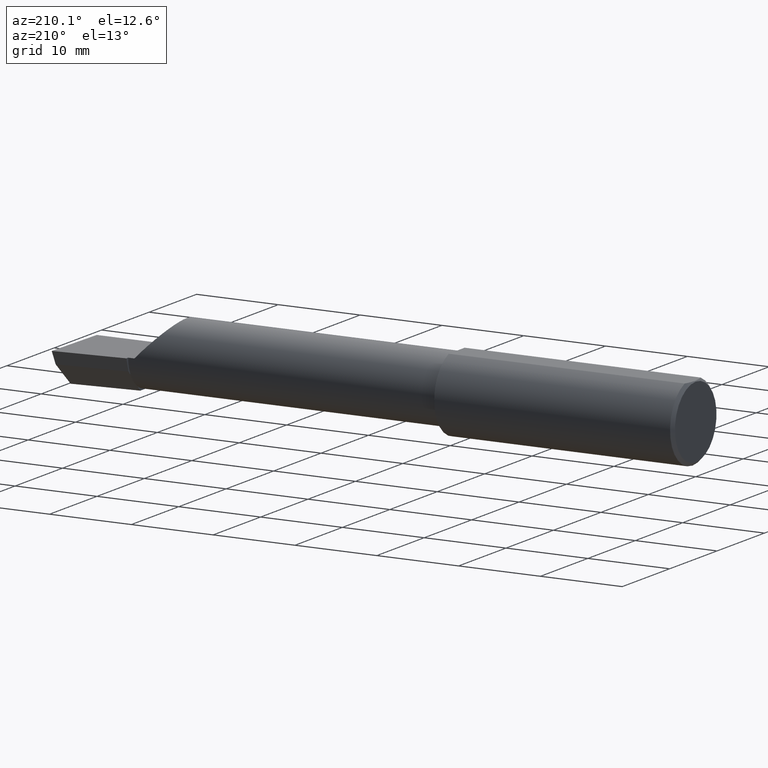
[diagram: clean part render]
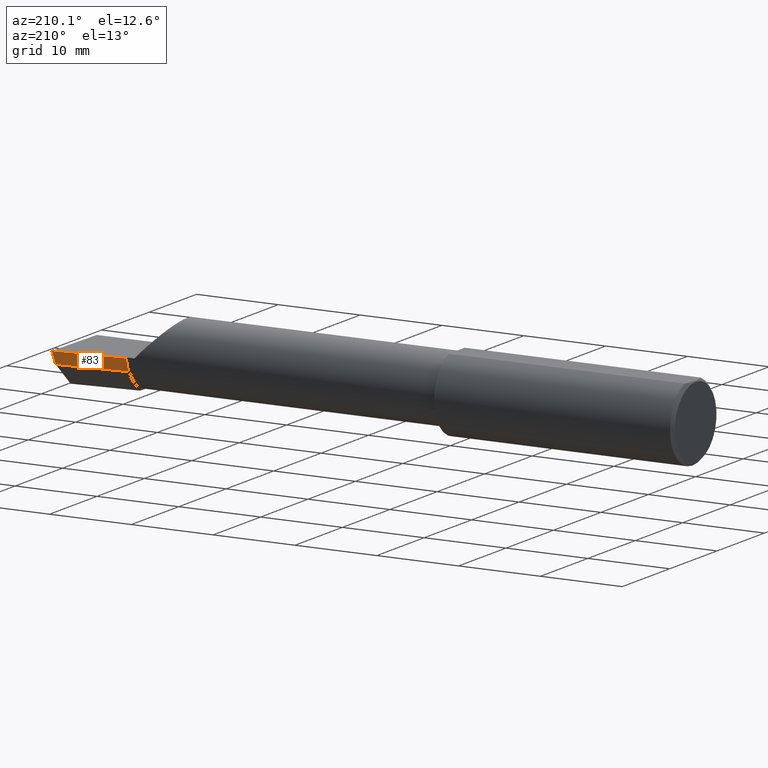
[diagram: same view with one face highlighted and labeled with its STEP entity id]
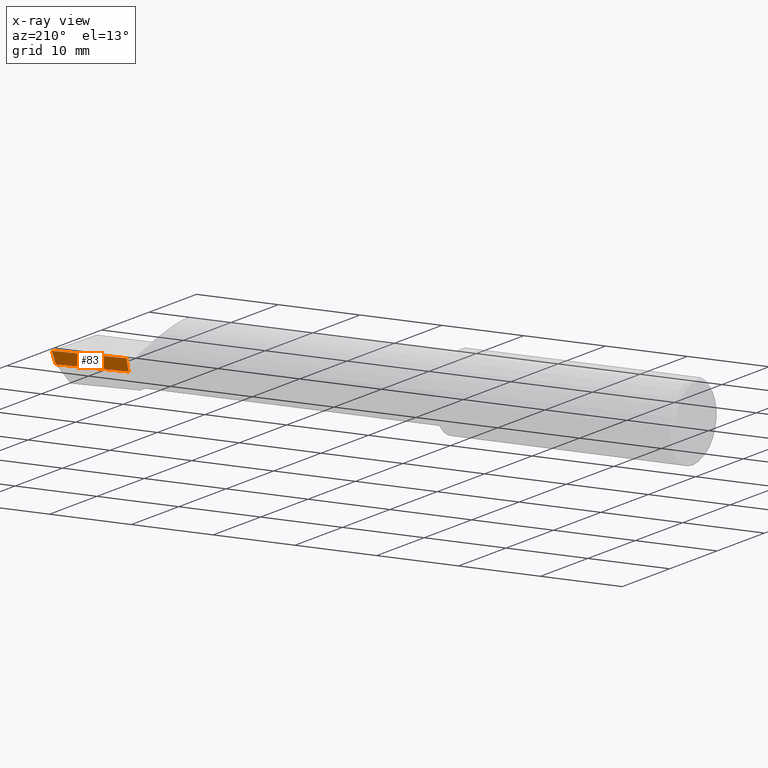
[diagram: x-ray of the same camera — body ghosted, the highlighted face saturated]
A machine part, auxiliary view. The second image highlights one B-rep face of the part: STEP entity #83.
The next image is the same camera in x-ray: the body ghosted, the highlighted face saturated — about 0% of this face is hidden behind the body in this view.
In plain terms, the highlighted planar face has unit normal (-0.0917, 0.9519, -0.2924).
Its self-contained STEP definition (entity closure, byte-faithful):
#6 = CARTESIAN_POINT ( 'NONE',  ( 2.992127980275564259, 0.1514633278254527426, -0.06000000000000001166 ) ) ;
#8 = ORIENTED_EDGE ( 'NONE', *, *, #434, .F. ) ;
#11 = EDGE_LOOP ( 'NONE', ( #8, #227, #442, #397 ) ) ;
#61 = DIRECTION ( 'NONE',  ( -0.09165774897393340337, 0.9519021185660614393, -0.2923717047227301080 ) ) ;
#65 = VECTOR ( 'NONE', #80, 39.37007874015748143 ) ;
#67 = CARTESIAN_POINT ( 'NONE',  ( 2.659999999999999698, 0.1346188438362105333, -0.01072093908174517711 ) ) ;
#73 = CARTESIAN_POINT ( 'NONE',  ( 3.000000000000015543, 0.1706500000000299999, 9.286389026041013029E-14 ) ) ;
#80 = DIRECTION ( 'NONE',  ( 0.9953961983671787417, 0.09584575252022456415, -1.409044964823803883E-16 ) ) ;
#83 = ADVANCED_FACE ( 'NONE', ( #202 ), #386, .T. ) ;
#114 = CARTESIAN_POINT ( 'NONE',  ( 3.011712141217648409, 0.1533490680423131858, -0.06000000000000001166 ) ) ;
#160 = CARTESIAN_POINT ( 'NONE',  ( 3.000188977433814852, 0.1711105994646683337, 0.001440373173037440713 ) ) ;
#165 = VERTEX_POINT ( 'NONE', #318 ) ;
#168 = VERTEX_POINT ( 'NONE', #73 ) ;
#202 = FACE_OUTER_BOUND ( 'NONE', #11, .T. ) ;
#208 = LINE ( 'NONE', #160, #226 ) ;
#226 = VECTOR ( 'NONE', #248, 39.37007874015748854 ) ;
#227 = ORIENTED_EDGE ( 'NONE', *, *, #485, .T. ) ;
#248 = DIRECTION ( 'NONE',  ( 0.1240019227989397066, 0.3022330132596644514, 0.9451342385281306102 ) ) ;
#252 = LINE ( 'NONE', #67, #331 ) ;
#253 = CARTESIAN_POINT ( 'NONE',  ( 2.659999999999999698, 0.1379117236128416524, 3.521522804332839197E-16 ) ) ;
#275 = VECTOR ( 'NONE', #545, 39.37007874015748854 ) ;
#296 = DIRECTION ( 'NONE',  ( 0.000000000000000000, 0.2936076258024057917, 0.9559260233253795702 ) ) ;
#300 = CARTESIAN_POINT ( 'NONE',  ( 3.009953961983673487, 0.1716084575252022348, -6.829619984160658046E-17 ) ) ;
#318 = CARTESIAN_POINT ( 'NONE',  ( 2.659999999999999698, 0.1194830407249523607, -0.06000000000000001166 ) ) ;
#331 = VECTOR ( 'NONE', #443, 39.37007874015748854 ) ;
#344 = LINE ( 'NONE', #114, #275 ) ;
#386 = PLANE ( 'NONE',  #481 ) ;
#397 = ORIENTED_EDGE ( 'NONE', *, *, #627, .T. ) ;
#416 = EDGE_CURVE ( 'NONE', #479, #165, #252, .T. ) ;
#434 = EDGE_CURVE ( 'NONE', #452, #168, #208, .T. ) ;
#442 = ORIENTED_EDGE ( 'NONE', *, *, #416, .F. ) ;
#443 = DIRECTION ( 'NONE',  ( -1.671023757235063182E-18, -0.2936076258024058472, -0.9559260233253797923 ) ) ;
#452 = VERTEX_POINT ( 'NONE', #6 ) ;
#479 = VERTEX_POINT ( 'NONE', #253 ) ;
#481 = AXIS2_PLACEMENT_3D ( 'NONE', #300, #61, #296 ) ;
#485 = EDGE_CURVE ( 'NONE', #452, #165, #344, .T. ) ;
#545 = DIRECTION ( 'NONE',  ( -0.9953961983671800740, -0.09584575252021031166, 0.000000000000000000 ) ) ;
#558 = CARTESIAN_POINT ( 'NONE',  ( 0.8393181374772692438, -0.03739999999999999575, 2.375616991505620205E-16 ) ) ;
#602 = LINE ( 'NONE', #558, #65 ) ;
#627 = EDGE_CURVE ( 'NONE', #479, #168, #602, .T. ) ;